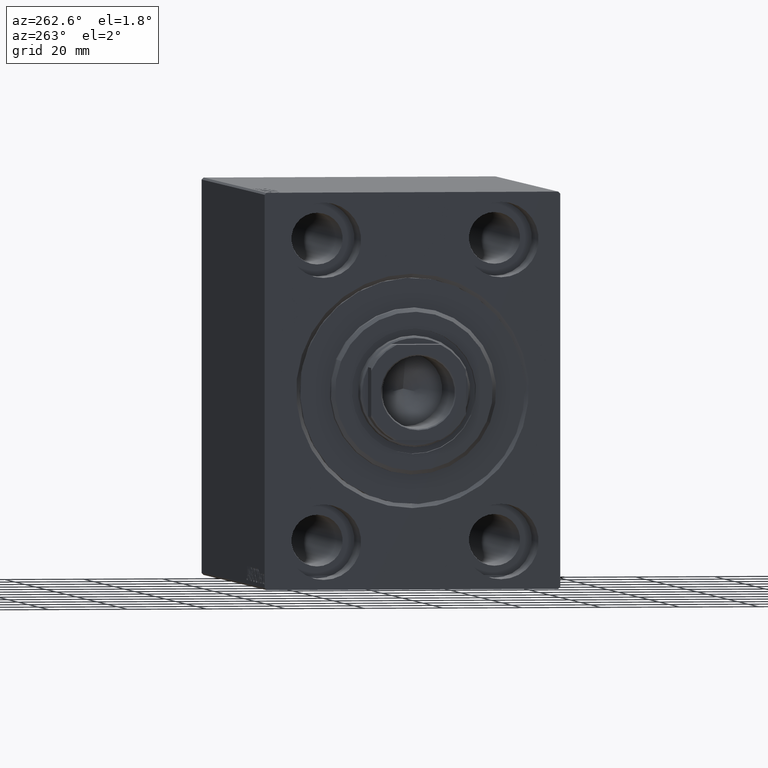
[diagram: clean part render]
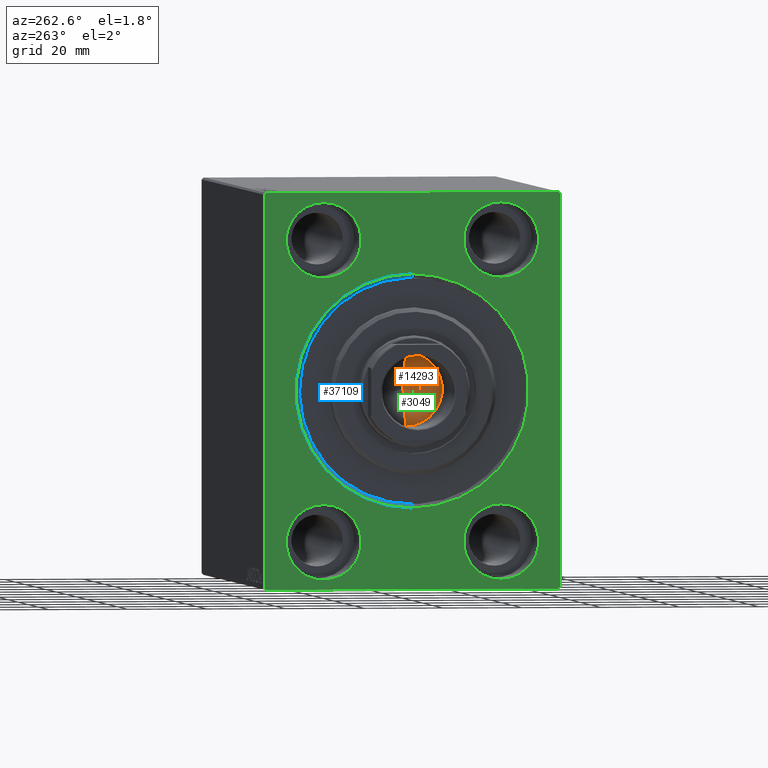
[diagram: same view with three faces highlighted in distinct colors, each labeled with its STEP entity id]
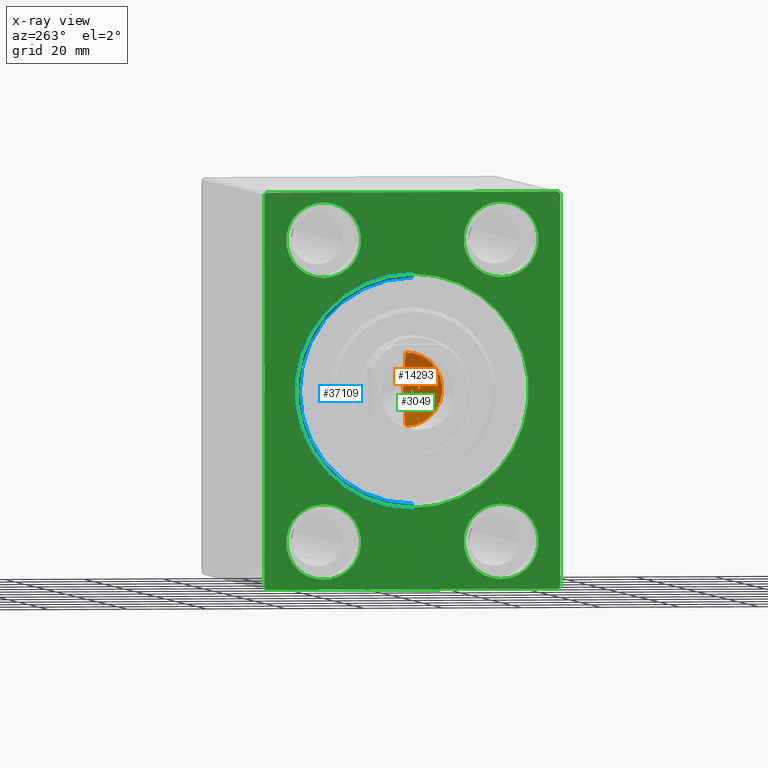
[diagram: x-ray of the same camera — body ghosted, the three highlighted faces saturated]
A machine part, auxiliary view with three faces highlighted in distinct colors.
The next image is the same camera in x-ray (body ghosted, the three faces saturated) — at least one of them is partly hidden behind the body in this view.
Their STEP definitions:

[orange] entity #14293 — the highlighted conical surface has half-angle 59 deg.
#2383 = DIRECTION ( 'NONE',  ( 1.000000000000000000, 0.000000000000000000, 0.000000000000000000 ) ) ;
#2464 = VERTEX_POINT ( 'NONE', #40507 ) ;
#2553 = VERTEX_POINT ( 'NONE', #3038 ) ;
#3038 = CARTESIAN_POINT ( 'NONE',  ( 9.249999999999994671, 0.000000000000000000, 96.00000000000000000 ) ) ;
#3706 = CARTESIAN_POINT ( 'NONE',  ( 9.249999999999994671, 0.000000000000000000, 96.00000000000000000 ) ) ;
#4148 = LINE ( 'NONE', #3706, #25574 ) ;
#5333 = FACE_OUTER_BOUND ( 'NONE', #18385, .T. ) ;
#7420 = ORIENTED_EDGE ( 'NONE', *, *, #36311, .T. ) ;
#9126 = DIRECTION ( 'NONE',  ( 1.000000000000000000, 0.000000000000000000, 0.000000000000000000 ) ) ;
#9335 = VERTEX_POINT ( 'NONE', #36811 ) ;
#11927 = LINE ( 'NONE', #18401, #16410 ) ;
#12938 = EDGE_CURVE ( 'NONE', #9335, #2553, #4148, .T. ) ;
#14293 = ADVANCED_FACE ( 'NONE', ( #5333 ), #38324, .F. ) ;
#14422 = ORIENTED_EDGE ( 'NONE', *, *, #21797, .T. ) ;
#16410 = VECTOR ( 'NONE', #21515, 1000.000000000000000 ) ;
#18385 = EDGE_LOOP ( 'NONE', ( #21301, #14422, #7420 ) ) ;
#18401 = CARTESIAN_POINT ( 'NONE',  ( -9.249999999999994671, 1.132798289211300909E-15, 96.00000000000000000 ) ) ;
#18960 = CARTESIAN_POINT ( 'NONE',  ( 0.000000000000000000, 0.000000000000000000, 96.00000000000000000 ) ) ;
#20218 = DIRECTION ( 'NONE',  ( -0.000000000000000000, -0.000000000000000000, 1.000000000000000000 ) ) ;
#21301 = ORIENTED_EDGE ( 'NONE', *, *, #12938, .F. ) ;
#21515 = DIRECTION ( 'NONE',  ( -0.8571673007021124446, 1.049727191138618819E-16, 0.5150380749100539335 ) ) ;
#21797 = EDGE_CURVE ( 'NONE', #9335, #2464, #11927, .T. ) ;
#25574 = VECTOR ( 'NONE', #37611, 1000.000000000000000 ) ;
#26665 = CARTESIAN_POINT ( 'NONE',  ( 0.000000000000000000, 0.000000000000000000, 96.00000000000000000 ) ) ;
#28228 = AXIS2_PLACEMENT_3D ( 'NONE', #26665, #20218, #2383 ) ;
#30078 = DIRECTION ( 'NONE',  ( -0.000000000000000000, -0.000000000000000000, 1.000000000000000000 ) ) ;
#36074 = CIRCLE ( 'NONE', #28228, 9.249999999999994671 ) ;
#36311 = EDGE_CURVE ( 'NONE', #2464, #2553, #36074, .T. ) ;
#36811 = CARTESIAN_POINT ( 'NONE',  ( -6.793016015247754405E-15, 0.000000000000000000, 90.44203927399507847 ) ) ;
#37611 = DIRECTION ( 'NONE',  ( 0.8571673007021124446, 0.000000000000000000, 0.5150380749100539335 ) ) ;
#38324 = CONICAL_SURFACE ( 'NONE', #44129, 9.249999999999994671, 1.029744258676654756 ) ;
#40507 = CARTESIAN_POINT ( 'NONE',  ( -9.249999999999994671, 1.132798289211300909E-15, 96.00000000000000000 ) ) ;
#44129 = AXIS2_PLACEMENT_3D ( 'NONE', #18960, #30078, #9126 ) ;

[blue] entity #37109 — the highlighted conical surface has half-angle 45 deg.
#1031 = DIRECTION ( 'NONE',  ( 1.000000000000000000, 0.000000000000000000, 0.000000000000000000 ) ) ;
#1099 = CONICAL_SURFACE ( 'NONE', #11059, 28.50000000000000000, 0.7853981633974533860 ) ;
#2128 = DIRECTION ( 'NONE',  ( -1.000000000000000000, 0.000000000000000000, 0.000000000000000000 ) ) ;
#2391 = ORIENTED_EDGE ( 'NONE', *, *, #18622, .F. ) ;
#4373 = CARTESIAN_POINT ( 'NONE',  ( 0.000000000000000000, 0.000000000000000000, 0.000000000000000000 ) ) ;
#4608 = CARTESIAN_POINT ( 'NONE',  ( 1.000000000000032196, 0.000000000000000000, 0.000000000000000000 ) ) ;
#7581 = AXIS2_PLACEMENT_3D ( 'NONE', #4608, #2128, #34960 ) ;
#7655 = EDGE_CURVE ( 'NONE', #10256, #16253, #41702, .T. ) ;
#8614 = CARTESIAN_POINT ( 'NONE',  ( 1.000000000000032196, 3.490243377569956456E-15, -28.50000000000000000 ) ) ;
#8700 = DIRECTION ( 'NONE',  ( -1.000000000000000000, 0.000000000000000000, 0.000000000000000000 ) ) ;
#9928 = ORIENTED_EDGE ( 'NONE', *, *, #43724, .F. ) ;
#10256 = VERTEX_POINT ( 'NONE', #10687 ) ;
#10687 = CARTESIAN_POINT ( 'NONE',  ( 1.000000000000032196, 0.000000000000000000, 28.50000000000000000 ) ) ;
#11059 = AXIS2_PLACEMENT_3D ( 'NONE', #32565, #8700, #29644 ) ;
#11161 = CIRCLE ( 'NONE', #7581, 28.50000000000000000 ) ;
#11762 = LINE ( 'NONE', #15117, #39877 ) ;
#13061 = ORIENTED_EDGE ( 'NONE', *, *, #37233, .F. ) ;
#13558 = EDGE_LOOP ( 'NONE', ( #2391, #13061, #20468, #9928 ) ) ;
#15117 = CARTESIAN_POINT ( 'NONE',  ( 1.000000000000032196, 3.490243377569956456E-15, -28.50000000000000000 ) ) ;
#16253 = VERTEX_POINT ( 'NONE', #40985 ) ;
#18233 = DIRECTION ( 'NONE',  ( -0.7071067811865439090, 8.659560562354979697E-17, -0.7071067811865512365 ) ) ;
#18555 = CARTESIAN_POINT ( 'NONE',  ( 0.000000000000000000, 3.612708057484697126E-15, -29.50000000000004263 ) ) ;
#18622 = EDGE_CURVE ( 'NONE', #41729, #31096, #11762, .T. ) ;
#19410 = FACE_OUTER_BOUND ( 'NONE', #13558, .T. ) ;
#20468 = ORIENTED_EDGE ( 'NONE', *, *, #7655, .T. ) ;
#21210 = CARTESIAN_POINT ( 'NONE',  ( 1.000000000000032196, 0.000000000000000000, 28.50000000000000000 ) ) ;
#27605 = AXIS2_PLACEMENT_3D ( 'NONE', #4373, #1031, #38505 ) ;
#29644 = DIRECTION ( 'NONE',  ( 0.000000000000000000, 0.000000000000000000, 1.000000000000000000 ) ) ;
#31096 = VERTEX_POINT ( 'NONE', #18555 ) ;
#31879 = CIRCLE ( 'NONE', #27605, 29.50000000000004263 ) ;
#32565 = CARTESIAN_POINT ( 'NONE',  ( 1.000000000000032196, 0.000000000000000000, 0.000000000000000000 ) ) ;
#32593 = VECTOR ( 'NONE', #35471, 1000.000000000000000 ) ;
#34960 = DIRECTION ( 'NONE',  ( 0.000000000000000000, 0.000000000000000000, -1.000000000000000000 ) ) ;
#35471 = DIRECTION ( 'NONE',  ( -0.7071067811865439090, 0.000000000000000000, 0.7071067811865512365 ) ) ;
#37109 = ADVANCED_FACE ( 'NONE', ( #19410 ), #1099, .F. ) ;
#37233 = EDGE_CURVE ( 'NONE', #10256, #41729, #11161, .T. ) ;
#38505 = DIRECTION ( 'NONE',  ( 0.000000000000000000, 0.000000000000000000, -1.000000000000000000 ) ) ;
#39877 = VECTOR ( 'NONE', #18233, 1000.000000000000000 ) ;
#40985 = CARTESIAN_POINT ( 'NONE',  ( 0.000000000000000000, 0.000000000000000000, 29.50000000000004263 ) ) ;
#41702 = LINE ( 'NONE', #21210, #32593 ) ;
#41729 = VERTEX_POINT ( 'NONE', #8614 ) ;
#43724 = EDGE_CURVE ( 'NONE', #31096, #16253, #31879, .T. ) ;

[green] entity #3049 — the highlighted planar face has unit normal (1, 0, 0).
#595 = VERTEX_POINT ( 'NONE', #21683 ) ;
#1031 = DIRECTION ( 'NONE',  ( 1.000000000000000000, 0.000000000000000000, 0.000000000000000000 ) ) ;
#1447 = EDGE_CURVE ( 'NONE', #2614, #2222, #11042, .T. ) ;
#1978 = DIRECTION ( 'NONE',  ( -1.000000000000000000, 0.000000000000000000, 0.000000000000000000 ) ) ;
#2037 = ORIENTED_EDGE ( 'NONE', *, *, #41643, .F. ) ;
#2222 = VERTEX_POINT ( 'NONE', #8186 ) ;
#2399 = EDGE_CURVE ( 'NONE', #595, #30753, #6813, .T. ) ;
#2539 = CARTESIAN_POINT ( 'NONE',  ( 0.000000000000000000, 22.50000000000000355, 37.99999999999999289 ) ) ;
#2614 = VERTEX_POINT ( 'NONE', #20124 ) ;
#2691 = CIRCLE ( 'NONE', #23357, 9.500000000000001776 ) ;
#2828 = EDGE_LOOP ( 'NONE', ( #21184, #6666 ) ) ;
#3049 = ADVANCED_FACE ( 'NONE', ( #25591, #14901, #11544, #24917, #35858, #8655 ), #25137, .F. ) ;
#3242 = EDGE_LOOP ( 'NONE', ( #17750, #3462 ) ) ;
#3364 = VECTOR ( 'NONE', #26203, 1000.000000000000000 ) ;
#3462 = ORIENTED_EDGE ( 'NONE', *, *, #19783, .F. ) ;
#3520 = CARTESIAN_POINT ( 'NONE',  ( 0.000000000000000000, 37.49999999999999289, 50.00000000000000711 ) ) ;
#3551 = CARTESIAN_POINT ( 'NONE',  ( 0.000000000000000000, -37.50000000000000711, 49.49999999999997868 ) ) ;
#3955 = AXIS2_PLACEMENT_3D ( 'NONE', #34297, #10222, #23821 ) ;
#3984 = DIRECTION ( 'NONE',  ( -0.000000000000000000, 0.7071067811865474617, 0.7071067811865474617 ) ) ;
#4373 = CARTESIAN_POINT ( 'NONE',  ( 0.000000000000000000, 0.000000000000000000, 0.000000000000000000 ) ) ;
#4615 = CARTESIAN_POINT ( 'NONE',  ( 0.000000000000000000, -22.50000000000000711, -47.49999999999999289 ) ) ;
#4756 = CARTESIAN_POINT ( 'NONE',  ( 0.000000000000000000, 22.49999999999999645, -47.49999999999999289 ) ) ;
#6156 = VERTEX_POINT ( 'NONE', #22938 ) ;
#6577 = VERTEX_POINT ( 'NONE', #10770 ) ;
#6666 = ORIENTED_EDGE ( 'NONE', *, *, #7712, .F. ) ;
#6813 = CIRCLE ( 'NONE', #19642, 9.500000000000001776 ) ;
#7712 = EDGE_CURVE ( 'NONE', #30753, #595, #31122, .T. ) ;
#8185 = CARTESIAN_POINT ( 'NONE',  ( 0.000000000000000000, 37.50000000000000711, -50.00000000000000000 ) ) ;
#8186 = CARTESIAN_POINT ( 'NONE',  ( 0.000000000000000000, -22.49999999999999645, 28.49999999999998934 ) ) ;
#8655 = FACE_OUTER_BOUND ( 'NONE', #35381, .T. ) ;
#8756 = DIRECTION ( 'NONE',  ( 1.000000000000000000, 0.000000000000000000, 0.000000000000000000 ) ) ;
#8981 = CIRCLE ( 'NONE', #23921, 29.50000000000004263 ) ;
#9072 = ORIENTED_EDGE ( 'NONE', *, *, #41546, .F. ) ;
#9443 = CARTESIAN_POINT ( 'NONE',  ( 0.000000000000000000, 36.99999999999999289, 50.00000000000000711 ) ) ;
#9589 = EDGE_CURVE ( 'NONE', #6156, #39629, #35435, .T. ) ;
#9717 = ORIENTED_EDGE ( 'NONE', *, *, #37981, .F. ) ;
#9815 = VECTOR ( 'NONE', #3984, 1000.000000000000114 ) ;
#10050 = EDGE_CURVE ( 'NONE', #39629, #6156, #2691, .T. ) ;
#10222 = DIRECTION ( 'NONE',  ( -1.000000000000000000, 0.000000000000000000, 0.000000000000000000 ) ) ;
#10358 = EDGE_CURVE ( 'NONE', #36498, #40542, #14039, .T. ) ;
#10427 = DIRECTION ( 'NONE',  ( -0.000000000000000000, -0.7071067811865474617, 0.7071067811865474617 ) ) ;
#10444 = DIRECTION ( 'NONE',  ( 0.000000000000000000, 0.000000000000000000, 1.000000000000000000 ) ) ;
#10519 = VECTOR ( 'NONE', #34104, 1000.000000000000000 ) ;
#10543 = CARTESIAN_POINT ( 'NONE',  ( 0.000000000000000000, 22.50000000000000355, 28.49999999999998934 ) ) ;
#10770 = CARTESIAN_POINT ( 'NONE',  ( 0.000000000000000000, -37.00000000000003553, -50.00000000000000711 ) ) ;
#10944 = ORIENTED_EDGE ( 'NONE', *, *, #43237, .F. ) ;
#11042 = CIRCLE ( 'NONE', #15332, 9.500000000000001776 ) ;
#11093 = CIRCLE ( 'NONE', #3955, 9.500000000000001776 ) ;
#11544 = FACE_BOUND ( 'NONE', #20829, .T. ) ;
#12186 = LINE ( 'NONE', #39390, #3364 ) ;
#12219 = DIRECTION ( 'NONE',  ( -1.000000000000000000, 0.000000000000000000, 0.000000000000000000 ) ) ;
#12834 = CARTESIAN_POINT ( 'NONE',  ( 0.000000000000000000, -36.99999999999999289, 49.99999999999999289 ) ) ;
#13288 = CARTESIAN_POINT ( 'NONE',  ( 0.000000000000000000, -37.50000000000000711, -49.50000000000003553 ) ) ;
#13575 = DIRECTION ( 'NONE',  ( 0.000000000000000000, -1.000000000000000000, -1.850371707708594316E-16 ) ) ;
#13646 = CARTESIAN_POINT ( 'NONE',  ( 0.000000000000000000, 36.99999999999999289, 50.00000000000000711 ) ) ;
#14027 = AXIS2_PLACEMENT_3D ( 'NONE', #38086, #20718, #10444 ) ;
#14039 = LINE ( 'NONE', #3551, #9815 ) ;
#14673 = DIRECTION ( 'NONE',  ( 0.000000000000000000, 0.000000000000000000, -1.000000000000000000 ) ) ;
#14795 = AXIS2_PLACEMENT_3D ( 'NONE', #29886, #36357, #32804 ) ;
#14901 = FACE_BOUND ( 'NONE', #2828, .T. ) ;
#15332 = AXIS2_PLACEMENT_3D ( 'NONE', #41521, #17675, #24798 ) ;
#15693 = CIRCLE ( 'NONE', #37720, 9.500000000000001776 ) ;
#16253 = VERTEX_POINT ( 'NONE', #40985 ) ;
#16545 = VERTEX_POINT ( 'NONE', #29379 ) ;
#17675 = DIRECTION ( 'NONE',  ( -1.000000000000000000, 0.000000000000000000, 0.000000000000000000 ) ) ;
#17750 = ORIENTED_EDGE ( 'NONE', *, *, #34208, .F. ) ;
#18157 = ORIENTED_EDGE ( 'NONE', *, *, #10050, .F. ) ;
#18400 = VERTEX_POINT ( 'NONE', #32108 ) ;
#18555 = CARTESIAN_POINT ( 'NONE',  ( 0.000000000000000000, 3.612708057484697126E-15, -29.50000000000004263 ) ) ;
#18635 = ORIENTED_EDGE ( 'NONE', *, *, #9589, .F. ) ;
#18676 = DIRECTION ( 'NONE',  ( 0.000000000000000000, 0.000000000000000000, 1.000000000000000000 ) ) ;
#18837 = DIRECTION ( 'NONE',  ( -0.000000000000000000, 0.7071067811865425767, -0.7071067811865525687 ) ) ;
#19351 = VERTEX_POINT ( 'NONE', #4615 ) ;
#19403 = VERTEX_POINT ( 'NONE', #39212 ) ;
#19642 = AXIS2_PLACEMENT_3D ( 'NONE', #39423, #12219, #35851 ) ;
#19783 = EDGE_CURVE ( 'NONE', #19351, #19403, #15693, .T. ) ;
#19836 = ORIENTED_EDGE ( 'NONE', *, *, #21141, .T. ) ;
#20124 = CARTESIAN_POINT ( 'NONE',  ( 0.000000000000000000, -22.49999999999999645, 47.49999999999999289 ) ) ;
#20488 = LINE ( 'NONE', #37633, #21040 ) ;
#20718 = DIRECTION ( 'NONE',  ( -1.000000000000000000, 0.000000000000000000, 0.000000000000000000 ) ) ;
#20829 = EDGE_LOOP ( 'NONE', ( #20897, #9072 ) ) ;
#20897 = ORIENTED_EDGE ( 'NONE', *, *, #1447, .F. ) ;
#21040 = VECTOR ( 'NONE', #10427, 1000.000000000000114 ) ;
#21141 = EDGE_CURVE ( 'NONE', #42064, #16545, #40006, .T. ) ;
#21184 = ORIENTED_EDGE ( 'NONE', *, *, #2399, .F. ) ;
#21683 = CARTESIAN_POINT ( 'NONE',  ( 0.000000000000000000, 22.49999999999999645, -28.49999999999998934 ) ) ;
#21727 = VERTEX_POINT ( 'NONE', #13288 ) ;
#21759 = AXIS2_PLACEMENT_3D ( 'NONE', #39210, #38531, #14673 ) ;
#21868 = CARTESIAN_POINT ( 'NONE',  ( 0.000000000000000000, 37.00000000000000711, -50.00000000000000000 ) ) ;
#22015 = CARTESIAN_POINT ( 'NONE',  ( 0.000000000000000000, 22.50000000000000355, 37.99999999999999289 ) ) ;
#22666 = AXIS2_PLACEMENT_3D ( 'NONE', #22015, #29569, #18676 ) ;
#22938 = CARTESIAN_POINT ( 'NONE',  ( 0.000000000000000000, 22.50000000000000355, 47.49999999999999289 ) ) ;
#23357 = AXIS2_PLACEMENT_3D ( 'NONE', #2539, #30181, #43784 ) ;
#23382 = ORIENTED_EDGE ( 'NONE', *, *, #37583, .T. ) ;
#23478 = EDGE_CURVE ( 'NONE', #18400, #37824, #34720, .T. ) ;
#23821 = DIRECTION ( 'NONE',  ( 0.000000000000000000, 0.000000000000000000, 1.000000000000000000 ) ) ;
#23921 = AXIS2_PLACEMENT_3D ( 'NONE', #39094, #8756, #25028 ) ;
#24245 = EDGE_CURVE ( 'NONE', #18400, #16545, #32279, .T. ) ;
#24798 = DIRECTION ( 'NONE',  ( 0.000000000000000000, 0.000000000000000000, 1.000000000000000000 ) ) ;
#24903 = DIRECTION ( 'NONE',  ( 0.000000000000000000, -0.7071067811865474617, -0.7071067811865474617 ) ) ;
#24910 = DIRECTION ( 'NONE',  ( 0.000000000000000000, -1.387778780781445676E-16, 1.000000000000000000 ) ) ;
#24917 = FACE_BOUND ( 'NONE', #41918, .T. ) ;
#24945 = VECTOR ( 'NONE', #18837, 999.9999999999998863 ) ;
#25028 = DIRECTION ( 'NONE',  ( 0.000000000000000000, 0.000000000000000000, -1.000000000000000000 ) ) ;
#25137 = PLANE ( 'NONE',  #21759 ) ;
#25591 = FACE_BOUND ( 'NONE', #28011, .T. ) ;
#26203 = DIRECTION ( 'NONE',  ( 0.000000000000000000, 0.000000000000000000, -1.000000000000000000 ) ) ;
#27605 = AXIS2_PLACEMENT_3D ( 'NONE', #4373, #1031, #38505 ) ;
#27834 = ORIENTED_EDGE ( 'NONE', *, *, #43724, .T. ) ;
#28011 = EDGE_LOOP ( 'NONE', ( #23382, #27834 ) ) ;
#29298 = VECTOR ( 'NONE', #24903, 1000.000000000000114 ) ;
#29379 = CARTESIAN_POINT ( 'NONE',  ( 0.000000000000000000, 37.49999999999999289, 49.50000000000000000 ) ) ;
#29569 = DIRECTION ( 'NONE',  ( -1.000000000000000000, 0.000000000000000000, 0.000000000000000000 ) ) ;
#29737 = CIRCLE ( 'NONE', #14027, 9.500000000000001776 ) ;
#29886 = CARTESIAN_POINT ( 'NONE',  ( 0.000000000000000000, 22.49999999999999645, -37.99999999999999289 ) ) ;
#30181 = DIRECTION ( 'NONE',  ( -1.000000000000000000, 0.000000000000000000, 0.000000000000000000 ) ) ;
#30725 = LINE ( 'NONE', #3520, #35298 ) ;
#30753 = VERTEX_POINT ( 'NONE', #4756 ) ;
#30971 = ORIENTED_EDGE ( 'NONE', *, *, #24245, .F. ) ;
#31096 = VERTEX_POINT ( 'NONE', #18555 ) ;
#31122 = CIRCLE ( 'NONE', #14795, 9.500000000000001776 ) ;
#31879 = CIRCLE ( 'NONE', #27605, 29.50000000000004263 ) ;
#32108 = CARTESIAN_POINT ( 'NONE',  ( 0.000000000000000000, 37.50000000000000711, -49.50000000000000000 ) ) ;
#32279 = LINE ( 'NONE', #8185, #33574 ) ;
#32757 = CARTESIAN_POINT ( 'NONE',  ( 0.000000000000000000, -22.50000000000000711, -37.99999999999999289 ) ) ;
#32804 = DIRECTION ( 'NONE',  ( 0.000000000000000000, 0.000000000000000000, 1.000000000000000000 ) ) ;
#32873 = ORIENTED_EDGE ( 'NONE', *, *, #10358, .T. ) ;
#33574 = VECTOR ( 'NONE', #24910, 1000.000000000000000 ) ;
#34104 = DIRECTION ( 'NONE',  ( 0.000000000000000000, 1.000000000000000000, 9.251858538542970348E-17 ) ) ;
#34208 = EDGE_CURVE ( 'NONE', #19403, #19351, #11093, .T. ) ;
#34297 = CARTESIAN_POINT ( 'NONE',  ( 0.000000000000000000, -22.50000000000000711, -37.99999999999999289 ) ) ;
#34530 = CARTESIAN_POINT ( 'NONE',  ( 0.000000000000000000, -37.50000000000000711, -50.00000000000000711 ) ) ;
#34720 = LINE ( 'NONE', #38291, #29298 ) ;
#35298 = VECTOR ( 'NONE', #13575, 1000.000000000000000 ) ;
#35381 = EDGE_LOOP ( 'NONE', ( #2037, #32873, #9717, #19836, #30971, #40915, #10944, #40746 ) ) ;
#35435 = CIRCLE ( 'NONE', #22666, 9.500000000000001776 ) ;
#35851 = DIRECTION ( 'NONE',  ( 0.000000000000000000, 0.000000000000000000, 1.000000000000000000 ) ) ;
#35858 = FACE_BOUND ( 'NONE', #3242, .T. ) ;
#36357 = DIRECTION ( 'NONE',  ( -1.000000000000000000, 0.000000000000000000, 0.000000000000000000 ) ) ;
#36498 = VERTEX_POINT ( 'NONE', #41794 ) ;
#37148 = EDGE_CURVE ( 'NONE', #6577, #21727, #20488, .T. ) ;
#37583 = EDGE_CURVE ( 'NONE', #16253, #31096, #8981, .T. ) ;
#37633 = CARTESIAN_POINT ( 'NONE',  ( 0.000000000000000000, -37.00000000000003553, -50.00000000000000711 ) ) ;
#37720 = AXIS2_PLACEMENT_3D ( 'NONE', #32757, #1978, #43222 ) ;
#37824 = VERTEX_POINT ( 'NONE', #21868 ) ;
#37981 = EDGE_CURVE ( 'NONE', #42064, #40542, #30725, .T. ) ;
#38086 = CARTESIAN_POINT ( 'NONE',  ( 0.000000000000000000, -22.49999999999999645, 37.99999999999999289 ) ) ;
#38291 = CARTESIAN_POINT ( 'NONE',  ( 0.000000000000000000, 37.50000000000000711, -49.50000000000000000 ) ) ;
#38505 = DIRECTION ( 'NONE',  ( 0.000000000000000000, 0.000000000000000000, -1.000000000000000000 ) ) ;
#38531 = DIRECTION ( 'NONE',  ( 1.000000000000000000, 0.000000000000000000, 0.000000000000000000 ) ) ;
#39094 = CARTESIAN_POINT ( 'NONE',  ( 0.000000000000000000, 0.000000000000000000, 0.000000000000000000 ) ) ;
#39210 = CARTESIAN_POINT ( 'NONE',  ( 0.000000000000000000, 0.000000000000000000, 0.000000000000000000 ) ) ;
#39212 = CARTESIAN_POINT ( 'NONE',  ( 0.000000000000000000, -22.50000000000000711, -28.49999999999998934 ) ) ;
#39390 = CARTESIAN_POINT ( 'NONE',  ( 0.000000000000000000, -37.50000000000000711, 49.99999999999999289 ) ) ;
#39423 = CARTESIAN_POINT ( 'NONE',  ( 0.000000000000000000, 22.49999999999999645, -37.99999999999999289 ) ) ;
#39629 = VERTEX_POINT ( 'NONE', #10543 ) ;
#40006 = LINE ( 'NONE', #9443, #24945 ) ;
#40542 = VERTEX_POINT ( 'NONE', #12834 ) ;
#40746 = ORIENTED_EDGE ( 'NONE', *, *, #37148, .T. ) ;
#40915 = ORIENTED_EDGE ( 'NONE', *, *, #23478, .T. ) ;
#40985 = CARTESIAN_POINT ( 'NONE',  ( 0.000000000000000000, 0.000000000000000000, 29.50000000000004263 ) ) ;
#41222 = LINE ( 'NONE', #34530, #10519 ) ;
#41521 = CARTESIAN_POINT ( 'NONE',  ( 0.000000000000000000, -22.49999999999999645, 37.99999999999999289 ) ) ;
#41546 = EDGE_CURVE ( 'NONE', #2222, #2614, #29737, .T. ) ;
#41643 = EDGE_CURVE ( 'NONE', #36498, #21727, #12186, .T. ) ;
#41794 = CARTESIAN_POINT ( 'NONE',  ( 0.000000000000000000, -37.50000000000000711, 49.49999999999997868 ) ) ;
#41918 = EDGE_LOOP ( 'NONE', ( #18635, #18157 ) ) ;
#42064 = VERTEX_POINT ( 'NONE', #13646 ) ;
#43222 = DIRECTION ( 'NONE',  ( 0.000000000000000000, 0.000000000000000000, 1.000000000000000000 ) ) ;
#43237 = EDGE_CURVE ( 'NONE', #6577, #37824, #41222, .T. ) ;
#43724 = EDGE_CURVE ( 'NONE', #31096, #16253, #31879, .T. ) ;
#43784 = DIRECTION ( 'NONE',  ( 0.000000000000000000, 0.000000000000000000, 1.000000000000000000 ) ) ;